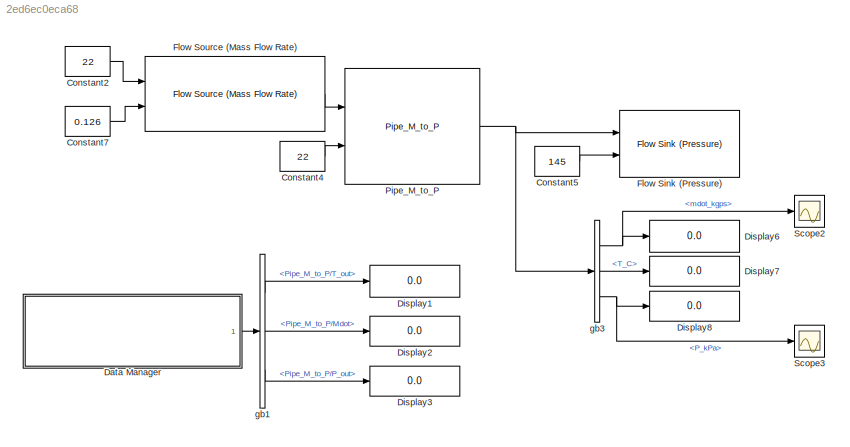
MODEL slx_2ed6ec0eca68
KIND model
BLOCK [Constant] Constant2
  Value = 22
BLOCK [Constant] Constant4
  Value = 22
BLOCK [Constant] Constant5
  Value = 145
BLOCK [Constant] Constant7
  Value = 0.126
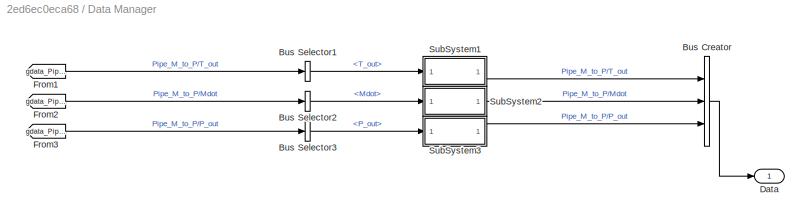
BLOCK [SubSystem] Data Manager
  AncestorBlock = DAEMOT_Lib/Support Functions/Data Manager
  OpenFcn = data_manager
  Ports = [0, 1]
  RequestExecContextInheritance = off
  UserDataPersistent = on
BLOCK [BusCreator] Data Manager/Bus Creator
  DisplayOption = bar
  Inputs = 3
  Ports = [3, 1]
BLOCK [BusSelector] Data Manager/Bus Selector1
  OutputSignals = T_out
  Ports = [1, 1]
BLOCK [BusSelector] Data Manager/Bus Selector2
  OutputSignals = Mdot
  Ports = [1, 1]
BLOCK [BusSelector] Data Manager/Bus Selector3
  OutputSignals = P_out
  Ports = [1, 1]
BLOCK [Outport] Data Manager/Data
  IconDisplay = Port number
BLOCK [From] Data Manager/From1
  GotoTag = gdata_Pipe_m_to_p_testPipe_M_to_Pdata_sink1
  TagVisibility = global
  UserDataPersistent = on
BLOCK [From] Data Manager/From2
  GotoTag = gdata_Pipe_m_to_p_testPipe_M_to_Pdata_sink1
  TagVisibility = global
  UserDataPersistent = on
BLOCK [From] Data Manager/From3
  GotoTag = gdata_Pipe_m_to_p_testPipe_M_to_Pdata_sink1
  TagVisibility = global
  UserDataPersistent = on
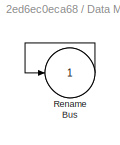
BLOCK [SubSystem] Data Manager/SubSystem1
  Ports = [1, 1]
  RequestExecContextInheritance = off
BLOCK [Outport] Data Manager/SubSystem1/Bus
  IconDisplay = Port number
BLOCK [Inport] Data Manager/SubSystem1/Rename
  IconDisplay = Port number
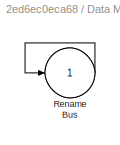
BLOCK [SubSystem] Data Manager/SubSystem2
  Ports = [1, 1]
  RequestExecContextInheritance = off
BLOCK [Outport] Data Manager/SubSystem2/Bus
  IconDisplay = Port number
BLOCK [Inport] Data Manager/SubSystem2/Rename
  IconDisplay = Port number
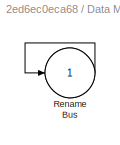
BLOCK [SubSystem] Data Manager/SubSystem3
  Ports = [1, 1]
  RequestExecContextInheritance = off
BLOCK [Outport] Data Manager/SubSystem3/Bus
  IconDisplay = Port number
BLOCK [Inport] Data Manager/SubSystem3/Rename
  IconDisplay = Port number
BLOCK [Display] Display1
  Decimation = 1
  Ports = [1]
BLOCK [Display] Display2
  Decimation = 1
  Ports = [1]
BLOCK [Display] Display3
  Decimation = 1
  Ports = [1]
BLOCK [Display] Display6
  Decimation = 1
  Ports = [1]
BLOCK [Display] Display7
  Decimation = 1
  Ports = [1]
BLOCK [Display] Display8
  Decimation = 1
  Ports = [1]
BLOCK [Reference] Flow Sink (Pressure)  REF=DAEMOT_Lib/Components/Flow Sink (Pressure)
  M = 0
  M_ext = on
  P = 0
  P_ext = on
  Ports = [2]
  SourceBlock = DAEMOT_Lib/Components/Flow Sink (Pressure)
  SourceType = Flow Sink (Pressure)
  T = 0
  T_ext = on
BLOCK [Reference] Flow Source (Mass Flow Rate)  REF=DAEMOT_Lib/Components/Flow Source (Mass Flow Rate)
  M = 0
  M_ext = on
  P = 0
  P_ext = on
  Ports = [2, 1]
  SourceBlock = DAEMOT_Lib/Components/Flow Source (Mass Flow Rate)
  SourceType = Flow Source (Mass Flow Rate)
  T = 0
  T_ext = on
BLOCK [Reference] Pipe_M_to_P  REF=DAEMOT_Lib/Components/Pipe_M_to_P
  D = 13*1e-3
  H = 0
  L = 0.2
  P_init = 145.1
  Ports = [2, 1]
  SourceBlock = DAEMOT_Lib/Components/Pipe_M_to_P
  SourceType = Pipe (M to P)
  Tamb_init = 22
  Tout_init = 22
  e = 0.01*1e-3
  fld = Water
BLOCK [Scope] Scope2
  Floating = off
  NumInputPorts = 1
  Ports = [1]
  SaveName = ScopeData2
  ShowLegends = off
BLOCK [Scope] Scope3
  Floating = off
  NumInputPorts = 1
  Ports = [1]
  SaveName = ScopeData3
  ShowLegends = off
BLOCK [BusSelector] gb1
  OutputSignals = Pipe_M_to_P/T_out,Pipe_M_to_P/Mdot,Pipe_M_to_P/P_out
  Ports = [1, 3]
BLOCK [BusSelector] gb3
  OutputSignals = mdot_kgps,T_C,P_kPa
  Ports = [1, 3]
LINE Constant2:1 -> Flow Source (Mass Flow Rate):1
LINE Constant4:1 -> Pipe_M_to_P:2
LINE Constant5:1 -> Flow Sink (Pressure):2
LINE Constant7:1 -> Flow Source (Mass Flow Rate):2
LINE Data Manager:1 -> gb1:1
LINE Flow Source (Mass Flow Rate):1 -> Pipe_M_to_P:1
NET Pipe_M_to_P:1 -> Flow Sink (Pressure):1, gb3:1
LINE gb1:1 -> Display1:1
LINE gb1:2 -> Display2:1
LINE gb1:3 -> Display3:1
NET gb3:1 -> Display6:1, Scope2:1
LINE gb3:2 -> Display7:1
NET gb3:3 -> Display8:1, Scope3:1
note: NET lines group one-source signal fan-out (src -> all destinations, sorted); 1:1 wires keep LINE
